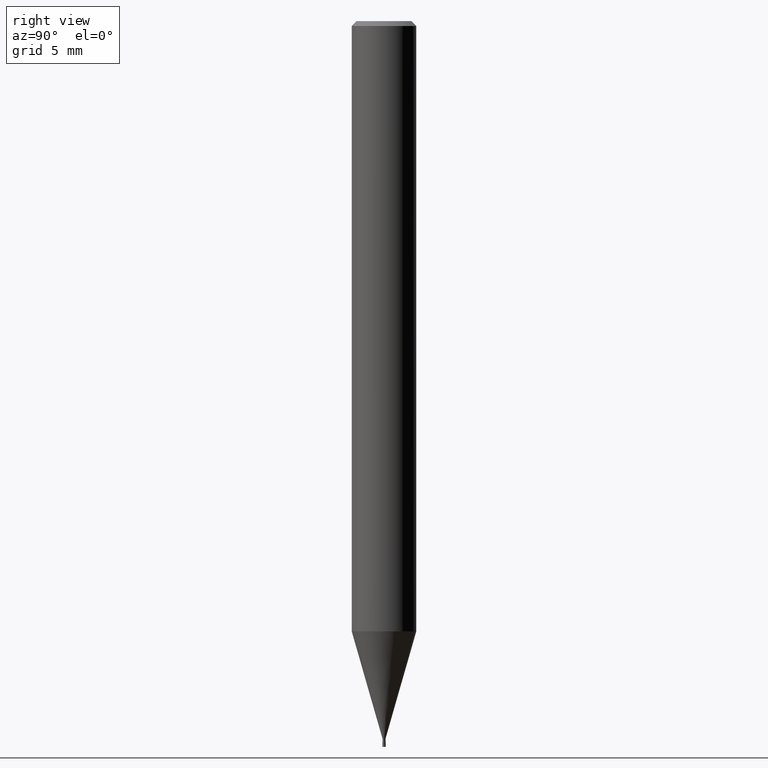
[diagram: clean part render]
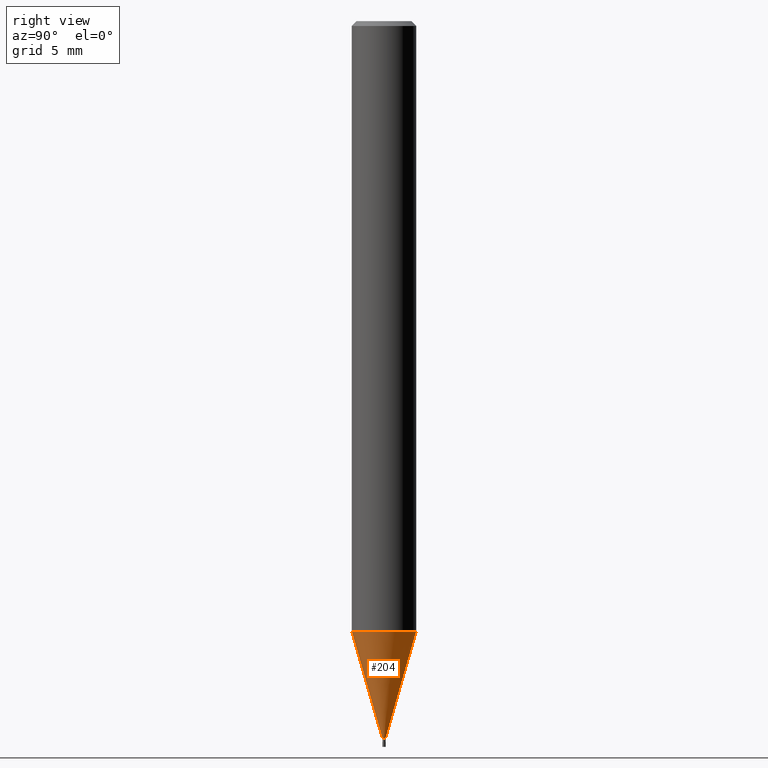
[diagram: same view with one face highlighted and labeled with its STEP entity id]
A machine part, right view. The second image highlights one B-rep face of the part: STEP entity #204.
In plain terms, the highlighted conical surface has half-angle 16 deg.
Its self-contained STEP definition (entity closure, byte-faithful):
#116=VERTEX_POINT('',#257);
#130=EDGE_CURVE('',#178,#160,#272,.T.);
#160=VERTEX_POINT('',#309);
#176=EDGE_CURVE('',#180,#160,#326,.T.);
#178=VERTEX_POINT('',#328);
#180=VERTEX_POINT('',#330);
#184=EDGE_CURVE('',#178,#116,#335,.T.);
#190=EDGE_CURVE('',#116,#180,#342,.T.);
#204=ADVANCED_FACE('',(#356),#357,.T.);
#257=CARTESIAN_POINT('',(0.0,0.08995,-44.5));
#272=CIRCLE('',#433,1.99995);
#309=CARTESIAN_POINT('',(2.44915147732706E-016,-1.99995,-37.839));
#326=LINE('',#498,#499);
#328=CARTESIAN_POINT('',(0.0,1.99995,-37.839));
#330=CARTESIAN_POINT('',(1.10153341526323E-017,-0.08995,-44.5));
#335=LINE('',#509,#510);
#342=CIRCLE('',#519,0.08995);
#356=FACE_OUTER_BOUND('',#534,.T.);
#357=CONICAL_SURFACE('',#535,1.04495,0.279251152364767);
#433=AXIS2_PLACEMENT_3D('',#597,#598,#599);
#498=CARTESIAN_POINT('',(1.27965240942669E-016,-1.04495,-41.1695));
#499=VECTOR('',#672,1.0);
#509=CARTESIAN_POINT('',(-1.27965240942669E-016,1.04495,-41.1695));
#510=VECTOR('',#681,1.0);
#519=AXIS2_PLACEMENT_3D('',#693,#694,#695);
#534=EDGE_LOOP('',(#704,#705,#706,#707));
#535=AXIS2_PLACEMENT_3D('',#708,#709,#710);
#597=CARTESIAN_POINT('',(0.0,0.0,-37.839));
#598=DIRECTION('',(0.0,0.0,-1.0));
#599=DIRECTION('',(0.0,1.0,0.0));
#672=DIRECTION('',(3.37545458626217E-017,-0.275635887052711,0.961262117098487));
#681=DIRECTION('',(3.37545458626217E-017,-0.275635887052711,-0.961262117098487));
#693=CARTESIAN_POINT('',(0.0,0.0,-44.5));
#694=DIRECTION('',(0.0,0.0,-1.0));
#695=DIRECTION('',(0.0,1.0,0.0));
#704=ORIENTED_EDGE('',*,*,#184,.F.);
#705=ORIENTED_EDGE('',*,*,#130,.T.);
#706=ORIENTED_EDGE('',*,*,#176,.F.);
#707=ORIENTED_EDGE('',*,*,#190,.F.);
#708=CARTESIAN_POINT('',(0.0,0.0,-41.1695));
#709=DIRECTION('',(-0.0,-0.0,1.0));
#710=DIRECTION('',(0.0,1.0,0.0));